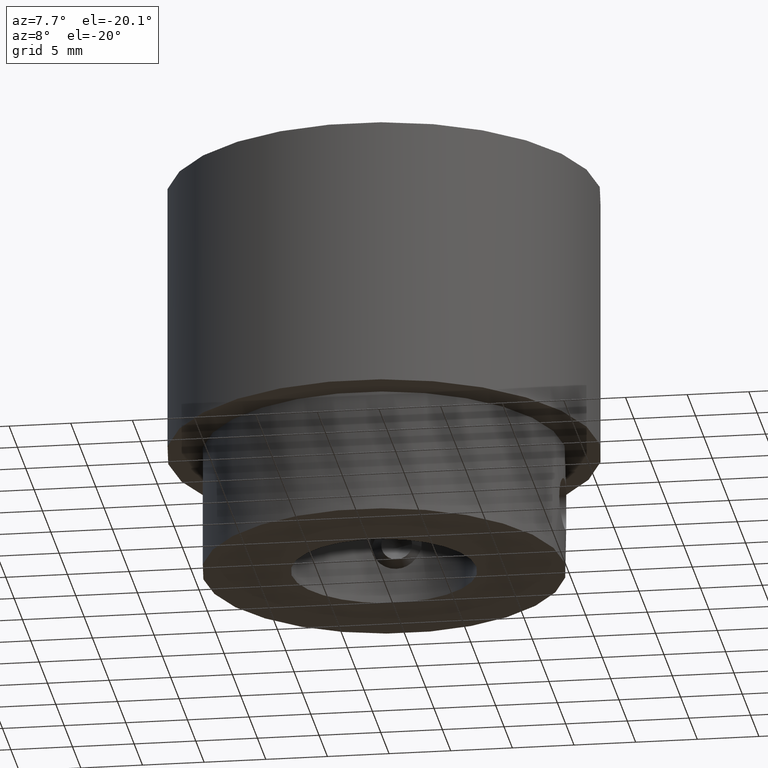
[diagram: clean part render]
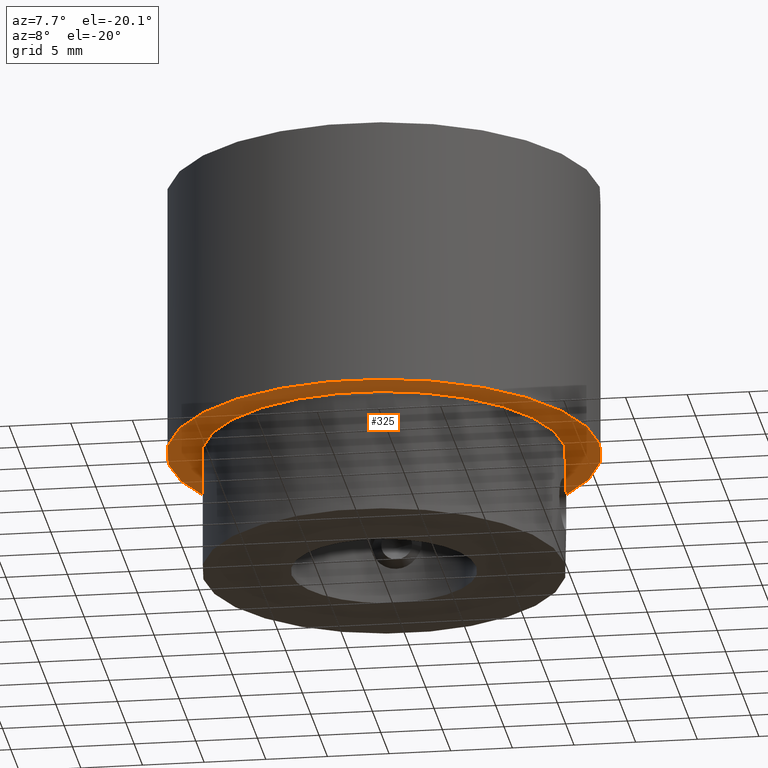
[diagram: same view with one face highlighted and labeled with its STEP entity id]
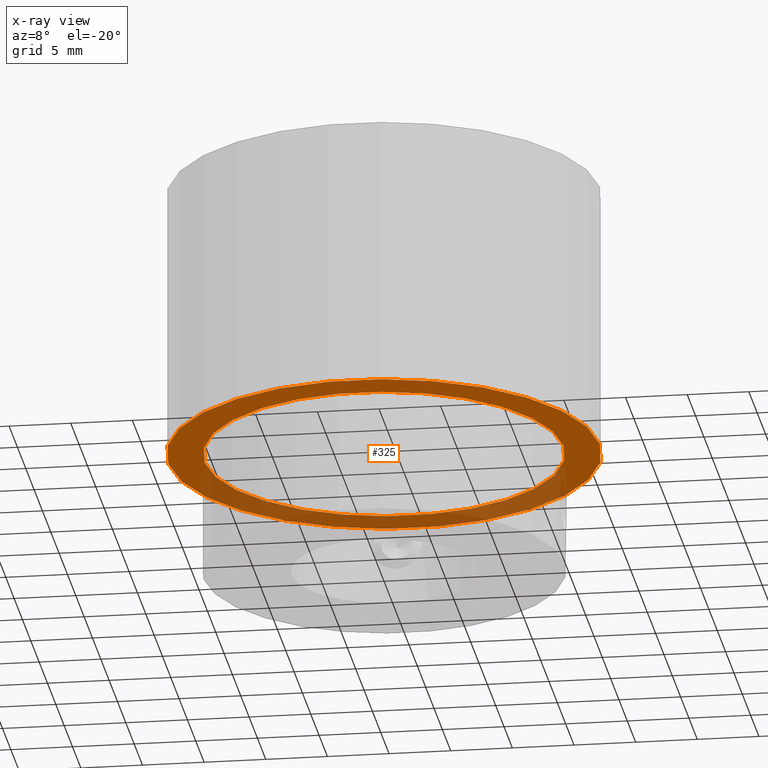
[diagram: x-ray of the same camera — body ghosted, the highlighted face saturated]
A machine part, auxiliary view. The second image highlights one B-rep face of the part: STEP entity #325.
The next image is the same camera in x-ray: the body ghosted, the highlighted face saturated — about 37% of this face is hidden behind the body in this view.
In plain terms, the highlighted planar face has unit normal (0, 0, 1).
Its self-contained STEP definition (entity closure, byte-faithful):
#325 = ADVANCED_FACE( '', ( #394, #395 ), #396, .F. );
#394 = FACE_OUTER_BOUND( '', #487, .T. );
#395 = FACE_BOUND( '', #488, .T. );
#396 = PLANE( '', #489 );
#487 = EDGE_LOOP( '', ( #601 ) );
#488 = EDGE_LOOP( '', ( #602 ) );
#489 = AXIS2_PLACEMENT_3D( '', #603, #604, #605 );
#601 = ORIENTED_EDGE( '', *, *, #768, .F. );
#602 = ORIENTED_EDGE( '', *, *, #770, .T. );
#603 = CARTESIAN_POINT( '', ( 0.000000000000000, 0.000000000000000, -22.0000000000000 ) );
#604 = DIRECTION( '', ( 0.000000000000000, 0.000000000000000, 1.00000000000000 ) );
#605 = DIRECTION( '', ( 1.00000000000000, 0.000000000000000, 0.000000000000000 ) );
#768 = EDGE_CURVE( '', #836, #836, #837, .T. );
#770 = EDGE_CURVE( '', #840, #840, #841, .T. );
#836 = VERTEX_POINT( '', #1160 );
#837 = CIRCLE( '', #1161, 17.5000000000000 );
#840 = VERTEX_POINT( '', #1164 );
#841 = CIRCLE( '', #1165, 14.5500000000000 );
#1160 = CARTESIAN_POINT( '', ( 17.5000000000000, 0.000000000000000, -22.0000000000000 ) );
#1161 = AXIS2_PLACEMENT_3D( '', #1342, #1343, #1344 );
#1164 = CARTESIAN_POINT( '', ( 14.5500000000000, 0.000000000000000, -22.0000000000000 ) );
#1165 = AXIS2_PLACEMENT_3D( '', #1348, #1349, #1350 );
#1342 = CARTESIAN_POINT( '', ( 0.000000000000000, 0.000000000000000, -22.0000000000000 ) );
#1343 = DIRECTION( '', ( 0.000000000000000, 0.000000000000000, 1.00000000000000 ) );
#1344 = DIRECTION( '', ( 1.00000000000000, 0.000000000000000, 0.000000000000000 ) );
#1348 = CARTESIAN_POINT( '', ( 0.000000000000000, 0.000000000000000, -22.0000000000000 ) );
#1349 = DIRECTION( '', ( 0.000000000000000, 0.000000000000000, 1.00000000000000 ) );
#1350 = DIRECTION( '', ( 1.00000000000000, 0.000000000000000, 0.000000000000000 ) );